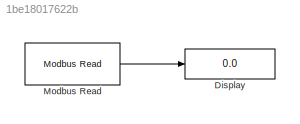
MODEL slx_1be18017622b
KIND model
CONFIG AbsTol = auto
CONFIG EnableMultiTasking = off
CONFIG FixedStep = auto
CONFIG MaxStep = auto
CONFIG MinStep = auto
CONFIG RelTol = 1e-3
CONFIG SampleTimeConstraint = Unconstrained
CONFIG Solver = VariableStepAuto
CONFIG SolverName = VariableStepAuto
CONFIG StartTime = 0.0
CONFIG StopTime = 10.0
BLOCK [Display] Display
  Decimation = 1
  Ports = [1]
BLOCK [Reference] Modbus Read  REF=modbusMatLib/Modbus Read
  Ports = [0, 1]
  SourceBlock = modbusMatLib/Modbus Read
  SourceType = Modbus Read
LINE Modbus Read:1 -> Display:1
